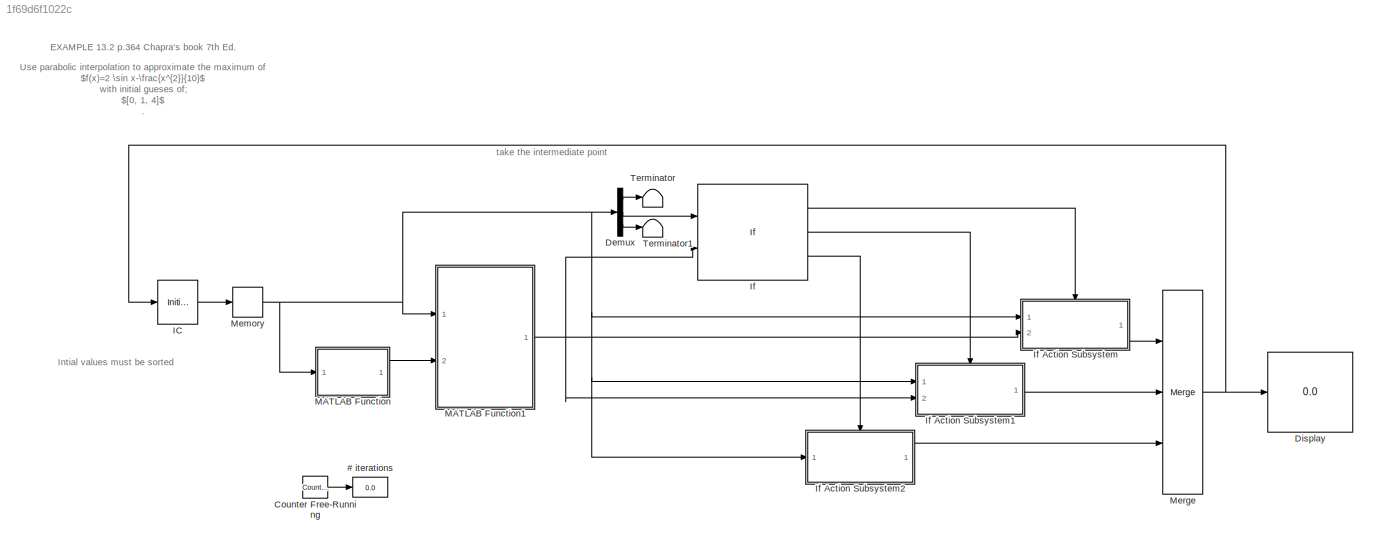
MODEL slx_1f69d6f1022c
KIND model
CONFIG AbsTol = auto
CONFIG EnableMultiTasking = off
CONFIG FixedStep = 1
CONFIG MaxStep = auto
CONFIG MinStep = auto
CONFIG RelTol = 1e-3
CONFIG SampleTimeConstraint = Unconstrained
CONFIG SolverName = FixedStepDiscrete
CONFIG StartTime = 0.0
CONFIG StopTime = 5
BLOCK [Display] # iterations
  Decimation = 1
  Ports = [1]
BLOCK [Reference] Counter Free-Running  REF=simulink/Sources/Counter
Free-Running
  Ports = [0, 1]
  SourceBlock = simulink/Sources/Counter\nFree-Running
  SourceProductBaseCode = SL
  SourceType = Counter Free-Running
BLOCK [Demux] Demux
  Outputs = 3
  Ports = [1, 3]
BLOCK [Display] Display
  Decimation = 1
  Ports = [1]
BLOCK [InitialCondition] IC
  Value = [0 1 4]
BLOCK [If] If
  ElseIfExpressions = u2 < u1
  IfExpression = u2 > u1
  NumInputs = 2
  Ports = [2, 3]
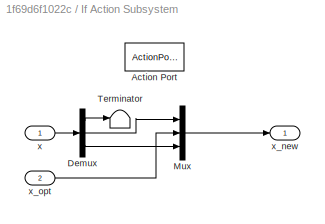
BLOCK [SubSystem] If Action Subsystem
  Ports = [2, 1, 0, 0, 0, 0, 0, 1]
  RequestExecContextInheritance = off
  TreatAsAtomicUnit = on
BLOCK [ActionPort] If Action Subsystem/Action Port
  ActionPortLabel = if(u2 > u1)
BLOCK [Demux] If Action Subsystem/Demux
  Outputs = 3
  Ports = [1, 3]
BLOCK [Mux] If Action Subsystem/Mux
  DisplayOption = bar
  Inputs = 3
  Ports = [3, 1]
BLOCK [Terminator] If Action Subsystem/Terminator
BLOCK [Inport] If Action Subsystem/x
BLOCK [Outport] If Action Subsystem/x_new
BLOCK [Inport] If Action Subsystem/x_opt
  Port = 2
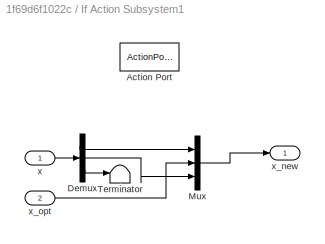
BLOCK [SubSystem] If Action Subsystem1
  Ports = [2, 1, 0, 0, 0, 0, 0, 1]
  RequestExecContextInheritance = off
  TreatAsAtomicUnit = on
BLOCK [ActionPort] If Action Subsystem1/Action Port
  ActionPortLabel = elseif(u2 < u1)
BLOCK [Demux] If Action Subsystem1/Demux
  Outputs = 3
  Ports = [1, 3]
BLOCK [Mux] If Action Subsystem1/Mux
  DisplayOption = bar
  Inputs = 3
  Ports = [3, 1]
BLOCK [Terminator] If Action Subsystem1/Terminator
BLOCK [Inport] If Action Subsystem1/x
BLOCK [Outport] If Action Subsystem1/x_new
BLOCK [Inport] If Action Subsystem1/x_opt
  Port = 2
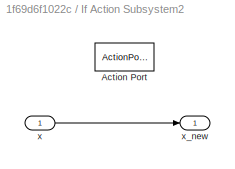
BLOCK [SubSystem] If Action Subsystem2
  Ports = [1, 1, 0, 0, 0, 0, 0, 1]
  RequestExecContextInheritance = off
  TreatAsAtomicUnit = on
BLOCK [ActionPort] If Action Subsystem2/Action Port
  ActionPortLabel = else
BLOCK [Inport] If Action Subsystem2/x
BLOCK [Outport] If Action Subsystem2/x_new
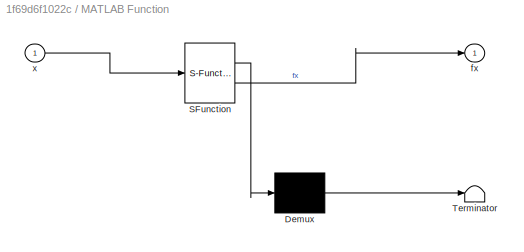
BLOCK [SubSystem] MATLAB Function
  ErrorFcn = Stateflow.Translate.translate
  PermitHierarchicalResolution = ExplicitOnly
  Ports = [1, 1]
  RequestExecContextInheritance = off
  SFBlockType = MATLAB Function
  TreatAsAtomicUnit = on
BLOCK [Demux] MATLAB Function/ Demux 
  Outputs = 1
  Ports = [1, 1]
BLOCK [S-Function] MATLAB Function/ SFunction 
  EnableBusSupport = on
  FunctionName = sf_sfun
  PortCounts = [1 2]
  Ports = [1, 2]
  SFcnIsStateOwnerBlock = off
  SFunctionDeploymentMode = off
  Tag = Stateflow S-Function 2
BLOCK [Terminator] MATLAB Function/ Terminator 
BLOCK [Outport] MATLAB Function/fx
BLOCK [Inport] MATLAB Function/x
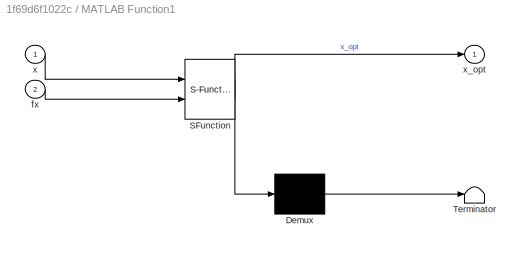
BLOCK [SubSystem] MATLAB Function1
  ErrorFcn = Stateflow.Translate.translate
  PermitHierarchicalResolution = ExplicitOnly
  Ports = [2, 1]
  RequestExecContextInheritance = off
  SFBlockType = MATLAB Function
  TreatAsAtomicUnit = on
BLOCK [Demux] MATLAB Function1/ Demux 
  Outputs = 1
  Ports = [1, 1]
BLOCK [S-Function] MATLAB Function1/ SFunction 
  EnableBusSupport = on
  FunctionName = sf_sfun
  PortCounts = [2 2]
  Ports = [2, 2]
  SFcnIsStateOwnerBlock = off
  SFunctionDeploymentMode = off
  Tag = Stateflow S-Function 1
BLOCK [Terminator] MATLAB Function1/ Terminator 
BLOCK [Inport] MATLAB Function1/fx
  Port = 2
BLOCK [Inport] MATLAB Function1/x
BLOCK [Outport] MATLAB Function1/x_opt
BLOCK [Memory] Memory
BLOCK [Merge] Merge
  Inputs = 3
  Ports = [3, 1]
BLOCK [Terminator] Terminator
BLOCK [Terminator] Terminator1
ANNOTATION (root): EXAMPLE 13.2 p.364 Chapra's book 7th Ed.
ANNOTATION (root): Use parabolic interpolation to approximate the maximum of $f(x)=2 \sin x-\frac{x^{2}}{10}$ with initial gueses of; $[0, 1, 4]$ .
ANNOTATION (root): Intial values must be sorted
ANNOTATION (root): take the intermediate point
LINE Counter Free-Running:1 -> # iterations:1
LINE Demux:1 -> Terminator:1
LINE Demux:2 -> If:1
LINE Demux:3 -> Terminator1:1
LINE IC:1 -> Memory:1
LINE If Action Subsystem/Demux:1 -> If Action Subsystem/Terminator:1
LINE If Action Subsystem/Demux:2 -> If Action Subsystem/Mux:1
LINE If Action Subsystem/Demux:3 -> If Action Subsystem/Mux:3
LINE If Action Subsystem/Mux:1 -> If Action Subsystem/x_new:1
LINE If Action Subsystem/x:1 -> If Action Subsystem/Demux:1
LINE If Action Subsystem/x_opt:1 -> If Action Subsystem/Mux:2
LINE If Action Subsystem1/Demux:1 -> If Action Subsystem1/Mux:1
LINE If Action Subsystem1/Demux:2 -> If Action Subsystem1/Mux:3
LINE If Action Subsystem1/Demux:3 -> If Action Subsystem1/Terminator:1
LINE If Action Subsystem1/Mux:1 -> If Action Subsystem1/x_new:1
LINE If Action Subsystem1/x:1 -> If Action Subsystem1/Demux:1
LINE If Action Subsystem1/x_opt:1 -> If Action Subsystem1/Mux:2
LINE If Action Subsystem1:1 -> Merge:2
LINE If Action Subsystem2/x:1 -> If Action Subsystem2/x_new:1
LINE If Action Subsystem2:1 -> Merge:3
LINE If Action Subsystem:1 -> Merge:1
LINE If:1 -> If Action Subsystem:ifaction
LINE If:2 -> If Action Subsystem1:ifaction
LINE If:3 -> If Action Subsystem2:ifaction
NET MATLAB Function1:1 -> If Action Subsystem1:2, If Action Subsystem:2, If:2
LINE MATLAB Function:1 -> MATLAB Function1:2
NET Memory:1 -> Demux:1, If Action Subsystem1:1, If Action Subsystem2:1, If Action Subsystem:1, MATLAB Function1:1, MATLAB Function:1
NET Merge:1 -> Display:1, IC:1
note: NET lines group one-source signal fan-out (src -> all destinations, sorted); 1:1 wires keep LINE
CHART MATLAB Function1 states=1 transitions=1
  STATE_LABEL 'eML_blk_kernel()'
  STATE_LABEL 'SCRIPT:\nfunction  x_opt = calc_x_opt(x, fx)\n\nA = fx(1)*(x(2)^2-x(3)^2) + fx(2)*(x(3)^2-x(1)^2) + fx(3)*(x(1)^2-x(2)^2);\nB = 2*fx(1)*(x(2)-x(3)) + 2*fx(2)*(x(3)-x(1)) + 2*fx(3)*(x(1)-x(2));\n\nx_opt = A/B;\n'
CHART MATLAB Function states=1 transitions=1
  STATE_LABEL 'eML_blk_kernel()'
  STATE_LABEL 'SCRIPT:\nfunction fx = f(x)\n\nfx = 2*sin(x) - x.^2 / 10;\n'
CHART  states=0 transitions=0
CHART  states=0 transitions=0
